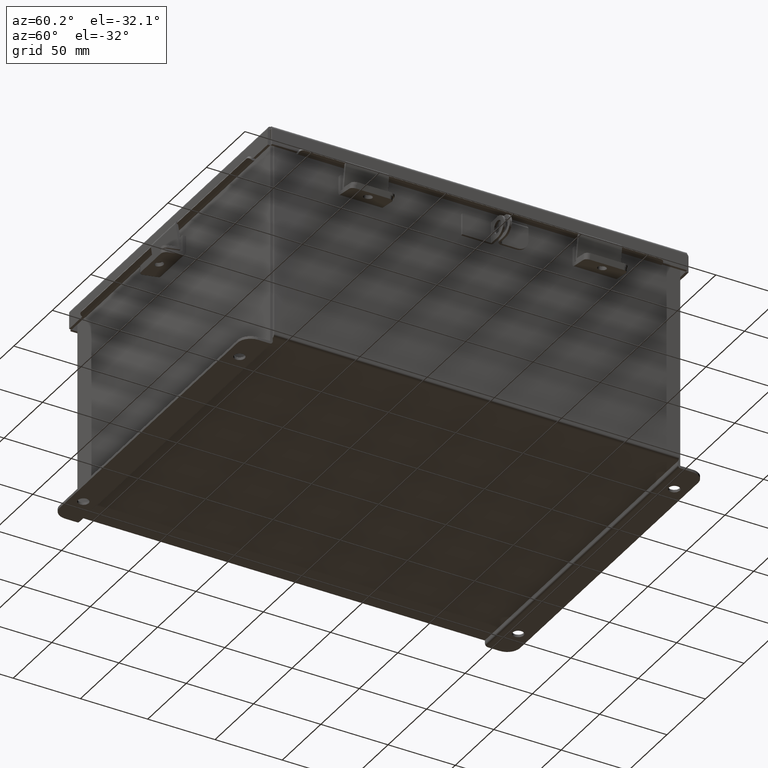
[diagram: clean part render]
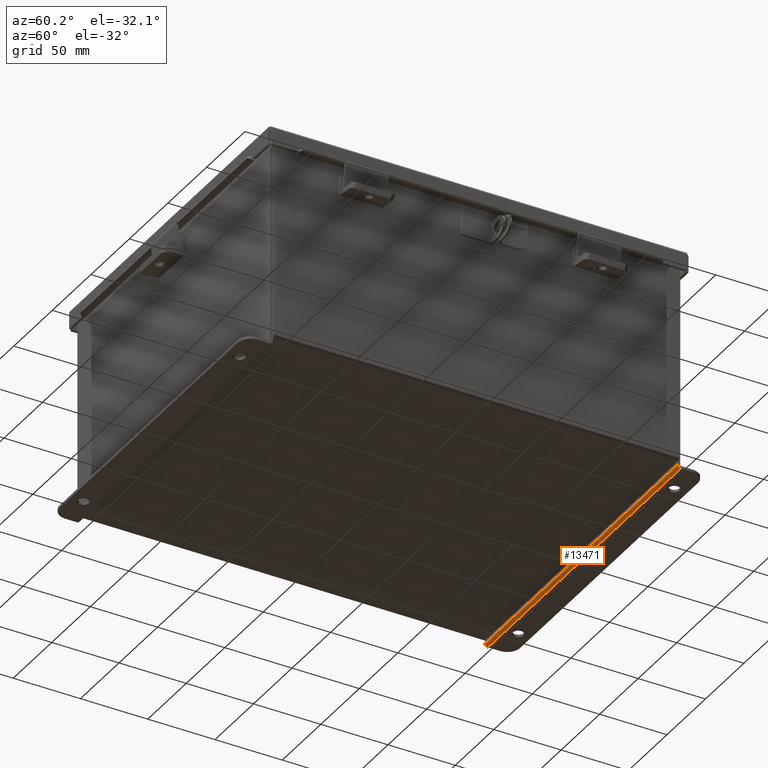
[diagram: same view with one face highlighted and labeled with its STEP entity id]
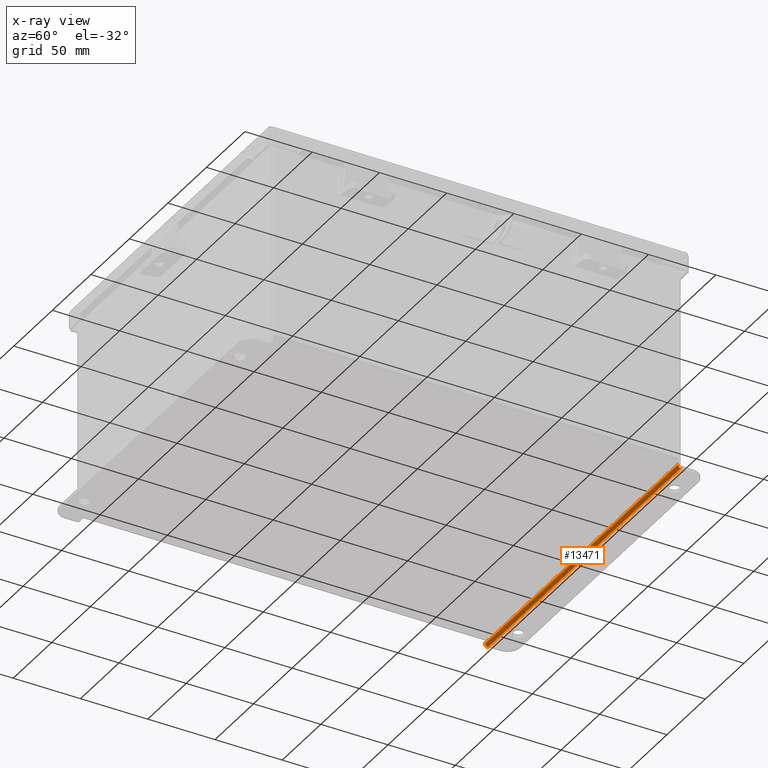
[diagram: x-ray of the same camera — body ghosted, the highlighted face saturated]
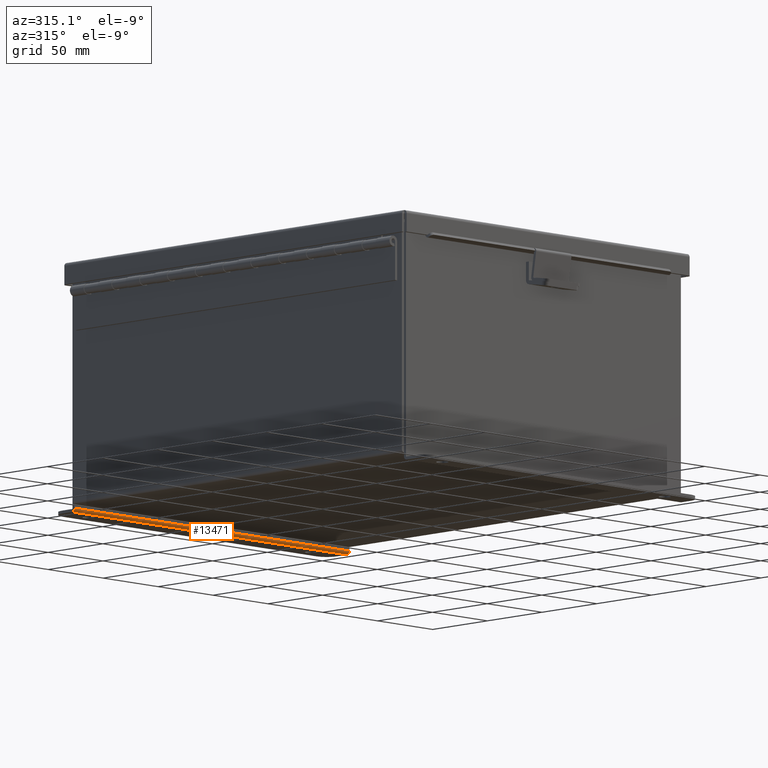
[diagram: same view with one face highlighted and labeled with its STEP entity id]
A machine part, auxiliary view. The second image highlights one B-rep face of the part: STEP entity #13471.
The next image is the same camera in x-ray: the body ghosted, the highlighted face saturated — about 0% of this face is hidden behind the body in this view.
A second angle (auxiliary view) of the same face is appended — the face is thin or edge-on in the first view.
In plain terms, the highlighted cylindrical surface (edge-blend (fillet) strip) has radius 2.2276 mm, axis along (-1, 0, 0).
Its self-contained STEP definition (entity closure, byte-faithful):
#568 = AXIS2_PLACEMENT_3D ( 'NONE', #3367, #12954, #4727 ) ;
#2135 = VECTOR ( 'NONE', #16507, 39.37007874015748100 ) ;
#2254 = CARTESIAN_POINT ( 'NONE',  ( -4.925299999999999100, -0.07470000000000015500, -3.099299999999999900 ) ) ;
#3367 = CARTESIAN_POINT ( 'NONE',  ( 4.925300000000000000, 0.01300000000000010700, -3.099299999999999900 ) ) ;
#4375 = VERTEX_POINT ( 'NONE', #7200 ) ;
#4509 = LINE ( 'NONE', #7499, #15007 ) ;
#4556 = ORIENTED_EDGE ( 'NONE', *, *, #4844, .F. ) ;
#4727 = DIRECTION ( 'NONE',  ( 0.0000000000000000000, 0.0000000000000000000, 1.000000000000000000 ) ) ;
#4844 = EDGE_CURVE ( 'NONE', #9673, #14618, #4509, .T. ) ;
#5009 = ORIENTED_EDGE ( 'NONE', *, *, #11910, .F. ) ;
#5522 = CARTESIAN_POINT ( 'NONE',  ( 4.925300000000000000, 0.01300000000000010700, -3.187000000000000300 ) ) ;
#6373 = CIRCLE ( 'NONE', #568, 0.08770000000000026400 ) ;
#6593 = EDGE_CURVE ( 'NONE', #14872, #4375, #16710, .T. ) ;
#6683 = CIRCLE ( 'NONE', #15477, 0.08770000000000026400 ) ;
#7033 = CARTESIAN_POINT ( 'NONE',  ( -4.925299999999999100, 0.01300000000000010700, -3.099299999999999900 ) ) ;
#7200 = CARTESIAN_POINT ( 'NONE',  ( 4.925300000000000000, 0.01300000000000010700, -3.187000000000000300 ) ) ;
#7499 = CARTESIAN_POINT ( 'NONE',  ( -4.925300000000000000, -0.07470000000000015500, -3.099299999999999900 ) ) ;
#8061 = EDGE_CURVE ( 'NONE', #14618, #4375, #6373, .T. ) ;
#8109 = FACE_OUTER_BOUND ( 'NONE', #16393, .T. ) ;
#8382 = DIRECTION ( 'NONE',  ( 0.0000000000000000000, 0.0000000000000000000, 1.000000000000000000 ) ) ;
#9456 = ORIENTED_EDGE ( 'NONE', *, *, #8061, .F. ) ;
#9483 = DIRECTION ( 'NONE',  ( -1.000000000000000000, 0.0000000000000000000, 0.0000000000000000000 ) ) ;
#9673 = VERTEX_POINT ( 'NONE', #2254 ) ;
#11650 = CARTESIAN_POINT ( 'NONE',  ( -4.925299999999999100, 0.01300000000000010700, -3.187000000000000300 ) ) ;
#11910 = EDGE_CURVE ( 'NONE', #14872, #9673, #6683, .T. ) ;
#12954 = DIRECTION ( 'NONE',  ( 1.000000000000000000, -0.0000000000000000000, -0.0000000000000000000 ) ) ;
#13471 = ADVANCED_FACE ( 'NONE', ( #8109 ), #14966, .T. ) ;
#14324 = AXIS2_PLACEMENT_3D ( 'NONE', #17699, #9483, #16368 ) ;
#14617 = DIRECTION ( 'NONE',  ( 1.000000000000000000, -0.0000000000000000000, -0.0000000000000000000 ) ) ;
#14618 = VERTEX_POINT ( 'NONE', #16650 ) ;
#14642 = ORIENTED_EDGE ( 'NONE', *, *, #6593, .T. ) ;
#14872 = VERTEX_POINT ( 'NONE', #11650 ) ;
#14966 = CYLINDRICAL_SURFACE ( 'NONE', #14324, 0.08770000000000026400 ) ;
#15007 = VECTOR ( 'NONE', #14617, 39.37007874015748100 ) ;
#15477 = AXIS2_PLACEMENT_3D ( 'NONE', #7033, #16637, #8382 ) ;
#16368 = DIRECTION ( 'NONE',  ( 0.0000000000000000000, -3.699053013085864000E-015, -1.000000000000000000 ) ) ;
#16393 = EDGE_LOOP ( 'NONE', ( #4556, #5009, #14642, #9456 ) ) ;
#16507 = DIRECTION ( 'NONE',  ( 1.000000000000000000, -0.0000000000000000000, -0.0000000000000000000 ) ) ;
#16637 = DIRECTION ( 'NONE',  ( -1.000000000000000000, 0.0000000000000000000, 0.0000000000000000000 ) ) ;
#16650 = CARTESIAN_POINT ( 'NONE',  ( 4.925300000000000000, -0.07470000000000015500, -3.099299999999999900 ) ) ;
#16710 = LINE ( 'NONE', #5522, #2135 ) ;
#17699 = CARTESIAN_POINT ( 'NONE',  ( -4.925300000000000000, 0.01300000000000010700, -3.099299999999999900 ) ) ;